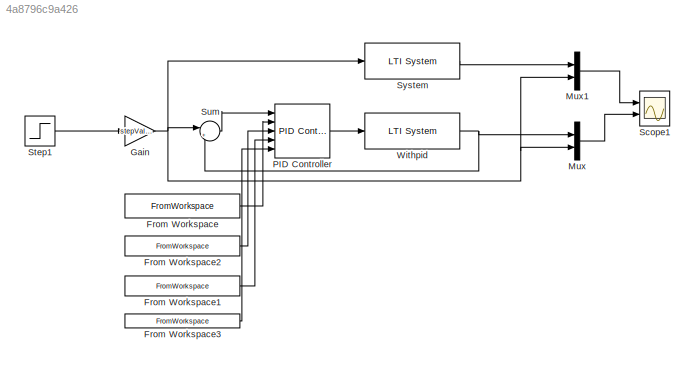
MODEL slx_4a8796c9a426
KIND model
CONFIG AbsTol = auto
CONFIG EnableMultiTasking = off
CONFIG FixedStep = auto
CONFIG MaxStep = auto
CONFIG MinStep = auto
CONFIG RelTol = 1e-3
CONFIG SampleTimeConstraint = Unconstrained
CONFIG Solver = VariableStepAuto
CONFIG SolverName = VariableStepAuto
CONFIG StartTime = 0.0
CONFIG StopTime = 10.0
BLOCK [FromWorkspace] From Workspace
  VariableName = [0 servoSystemPid.kp]
BLOCK [FromWorkspace] From Workspace1
  OutDataTypeStr = double
  VariableName = [0 servoSystemPid.kd]
BLOCK [FromWorkspace] From Workspace2
  OutDataTypeStr = double
  VariableName = [0 servoSystemPid.ki]
BLOCK [FromWorkspace] From Workspace3
  VariableName = [0  1097.26647500439]
BLOCK [Gain] Gain
  Gain = stepValue
BLOCK [Mux] Mux
  DisplayOption = bar
  Inputs = 2
  Ports = [2, 1]
BLOCK [Mux] Mux1
  DisplayOption = bar
  Inputs = 2
  Ports = [2, 1]
BLOCK [Reference] PID Controller  REF=simulink/Continuous/PID Controller
  Ports = [5, 1]
  SourceBlock = simulink/Continuous/PID Controller
  SourceProductBaseCode = SL
  SourceType = PID 1dof
BLOCK [Scope] Scope1
  Floating = off
  NumInputPorts = 2
  Ports = [2]
  ScopeSpecificationString = Simulink.scopes.TimeScopeBlockCfg('CurrentConfiguration', extmgr.ConfigurationSet(extmgr.Configuration('Core','General UI',true,'FigureColor',[0.8 0.8 0.8]),extmgr.Configuration('Core','Source UI',true),extmgr.Configuration('Sources','WiredSimulink',true,'DataLoggingVariableName','ScopeData1'),extmgr.Configuration('Visuals','Time Domain',true,'SerializedDisplays',{struct('MinYLimReal','-0.13179','...<+2998ch>
BLOCK [Step] Step1
  SampleTime = 0
BLOCK [Sum] Sum
  Inputs = |+-
  Ports = [2, 1]
BLOCK [Reference] System  REF=cstblocks/LTI System
  Ports = [1, 1]
  SourceBlock = cstblocks/LTI System
  SourceProductBaseCode = CT
  SourceType = LTI Block
BLOCK [Reference] Withpid  REF=cstblocks/LTI System
  Ports = [1, 1]
  SourceBlock = cstblocks/LTI System
  SourceProductBaseCode = CT
  SourceType = LTI Block
LINE From Workspace1:1 -> PID Controller:4
LINE From Workspace2:1 -> PID Controller:3
LINE From Workspace3:1 -> PID Controller:5
LINE From Workspace:1 -> PID Controller:2
NET Gain:1 -> Mux1:2, Mux:2, Sum:1, System:1
LINE Mux1:1 -> Scope1:1
LINE Mux:1 -> Scope1:2
LINE PID Controller:1 -> Withpid:1
LINE Step1:1 -> Gain:1
LINE Sum:1 -> PID Controller:1
LINE System:1 -> Mux1:1
NET Withpid:1 -> Mux:1, Sum:2
note: NET lines group one-source signal fan-out (src -> all destinations, sorted); 1:1 wires keep LINE
